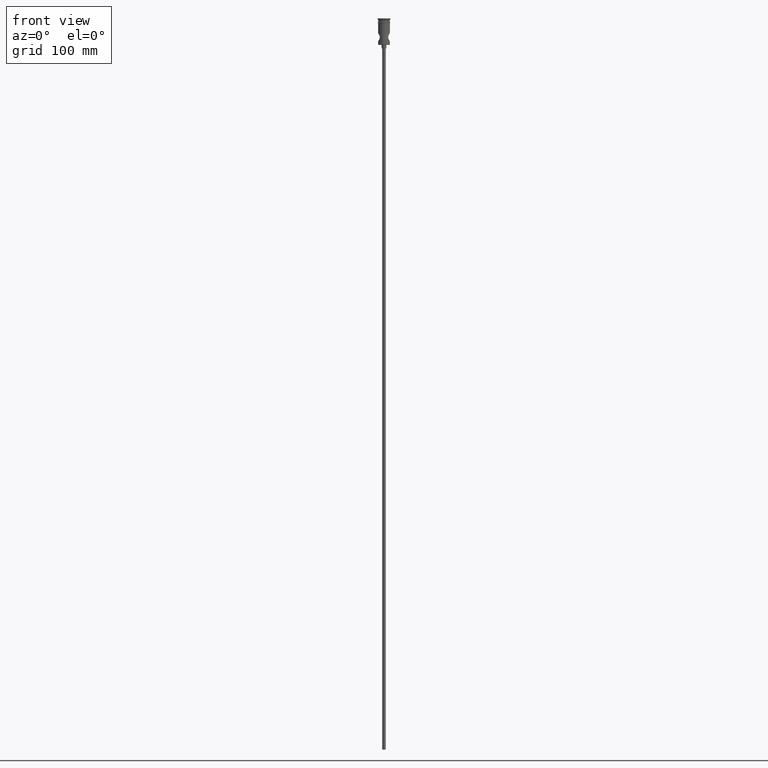
[diagram: clean part render]
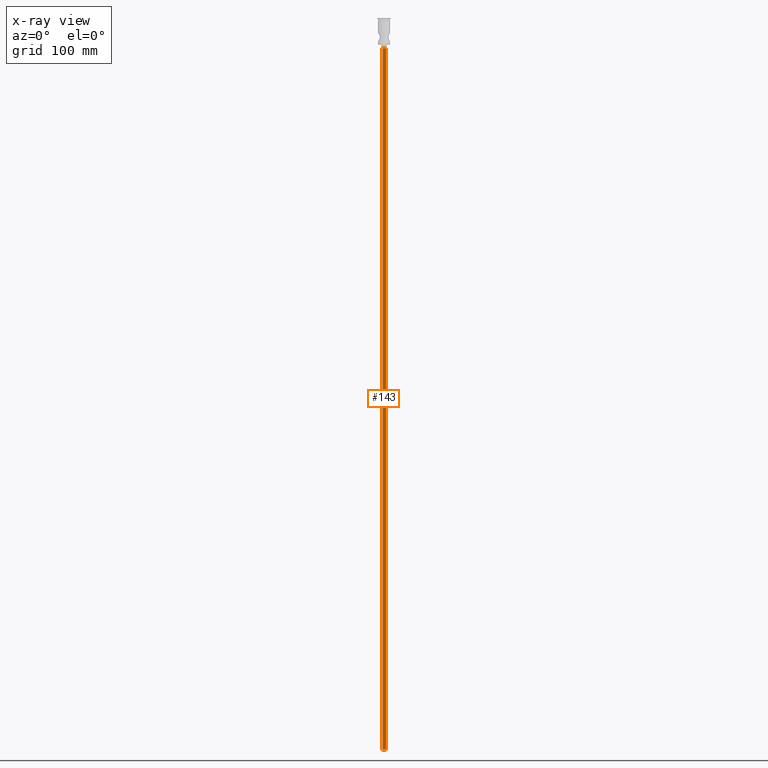
[diagram: x-ray — body ghosted, one internal face saturated and labeled with its STEP entity id]
A machine part, front view, then the same camera in x-ray: the body is ghosted and one INTERNAL B-rep face — a face not visible from any outside direction — is saturated and labeled: STEP entity #143.
In plain terms, the highlighted cylindrical surface (edge-blend (fillet) strip) has radius 1.5 mm, axis along (-0, -0, 1).
Its self-contained STEP definition (entity closure, byte-faithful):
#2 = ORIENTED_EDGE ( 'NONE', *, *, #944, .T. ) ;
#4 = ORIENTED_EDGE ( 'NONE', *, *, #300, .T. ) ;
#29 = CARTESIAN_POINT ( 'NONE',  ( 1.500000000000000222, 0.000000000000000000, -622.4999999999998863 ) ) ;
#39 = CARTESIAN_POINT ( 'NONE',  ( 0.000000000000000000, 0.000000000000000000, -622.4999999999998863 ) ) ;
#69 = CARTESIAN_POINT ( 'NONE',  ( -1.500000000000000222, 1.836970198721030181E-16, -25.50000000000000000 ) ) ;
#83 = CARTESIAN_POINT ( 'NONE',  ( 0.000000000000000000, 0.000000000000000000, -622.4999999999998863 ) ) ;
#143 = ADVANCED_FACE ( 'NONE', ( #515 ), #1228, .T. ) ;
#163 = DIRECTION ( 'NONE',  ( -0.000000000000000000, -0.000000000000000000, 1.000000000000000000 ) ) ;
#169 = CARTESIAN_POINT ( 'NONE',  ( -1.500000000000000222, 1.836970198721030181E-16, -622.4999999999998863 ) ) ;
#173 = CIRCLE ( 'NONE', #1285, 1.500000000000000222 ) ;
#206 = ORIENTED_EDGE ( 'NONE', *, *, #1035, .F. ) ;
#245 = VERTEX_POINT ( 'NONE', #758 ) ;
#300 = EDGE_CURVE ( 'NONE', #321, #1334, #1308, .T. ) ;
#321 = VERTEX_POINT ( 'NONE', #69 ) ;
#336 = DIRECTION ( 'NONE',  ( 1.000000000000000000, 0.000000000000000000, 0.000000000000000000 ) ) ;
#486 = DIRECTION ( 'NONE',  ( -1.000000000000000000, 0.000000000000000000, 0.000000000000000000 ) ) ;
#495 = DIRECTION ( 'NONE',  ( -0.000000000000000000, -0.000000000000000000, 1.000000000000000000 ) ) ;
#515 = FACE_OUTER_BOUND ( 'NONE', #791, .T. ) ;
#539 = DIRECTION ( 'NONE',  ( -0.000000000000000000, -0.000000000000000000, 1.000000000000000000 ) ) ;
#637 = DIRECTION ( 'NONE',  ( 0.000000000000000000, 0.000000000000000000, -1.000000000000000000 ) ) ;
#758 = CARTESIAN_POINT ( 'NONE',  ( -1.500000000000000222, 1.836970198721030181E-16, -622.4999999999998863 ) ) ;
#791 = EDGE_LOOP ( 'NONE', ( #206, #2, #4, #1367 ) ) ;
#836 = LINE ( 'NONE', #29, #1072 ) ;
#845 = CARTESIAN_POINT ( 'NONE',  ( 1.500000000000000222, 0.000000000000000000, -622.4999999999998863 ) ) ;
#882 = AXIS2_PLACEMENT_3D ( 'NONE', #1082, #637, #949 ) ;
#917 = AXIS2_PLACEMENT_3D ( 'NONE', #83, #539, #336 ) ;
#922 = VECTOR ( 'NONE', #163, 1000.000000000000000 ) ;
#944 = EDGE_CURVE ( 'NONE', #245, #321, #1403, .T. ) ;
#949 = DIRECTION ( 'NONE',  ( -1.000000000000000000, 0.000000000000000000, 0.000000000000000000 ) ) ;
#995 = CARTESIAN_POINT ( 'NONE',  ( 1.500000000000000222, 0.000000000000000000, -25.50000000000000000 ) ) ;
#1035 = EDGE_CURVE ( 'NONE', #245, #1240, #173, .T. ) ;
#1072 = VECTOR ( 'NONE', #495, 1000.000000000000000 ) ;
#1082 = CARTESIAN_POINT ( 'NONE',  ( 0.000000000000000000, 0.000000000000000000, -25.50000000000000000 ) ) ;
#1091 = EDGE_CURVE ( 'NONE', #1240, #1334, #836, .T. ) ;
#1228 = CYLINDRICAL_SURFACE ( 'NONE', #917, 1.500000000000000222 ) ;
#1240 = VERTEX_POINT ( 'NONE', #845 ) ;
#1285 = AXIS2_PLACEMENT_3D ( 'NONE', #39, #1385, #486 ) ;
#1308 = CIRCLE ( 'NONE', #882, 1.500000000000000222 ) ;
#1334 = VERTEX_POINT ( 'NONE', #995 ) ;
#1367 = ORIENTED_EDGE ( 'NONE', *, *, #1091, .F. ) ;
#1385 = DIRECTION ( 'NONE',  ( 0.000000000000000000, 0.000000000000000000, -1.000000000000000000 ) ) ;
#1403 = LINE ( 'NONE', #169, #922 ) ;